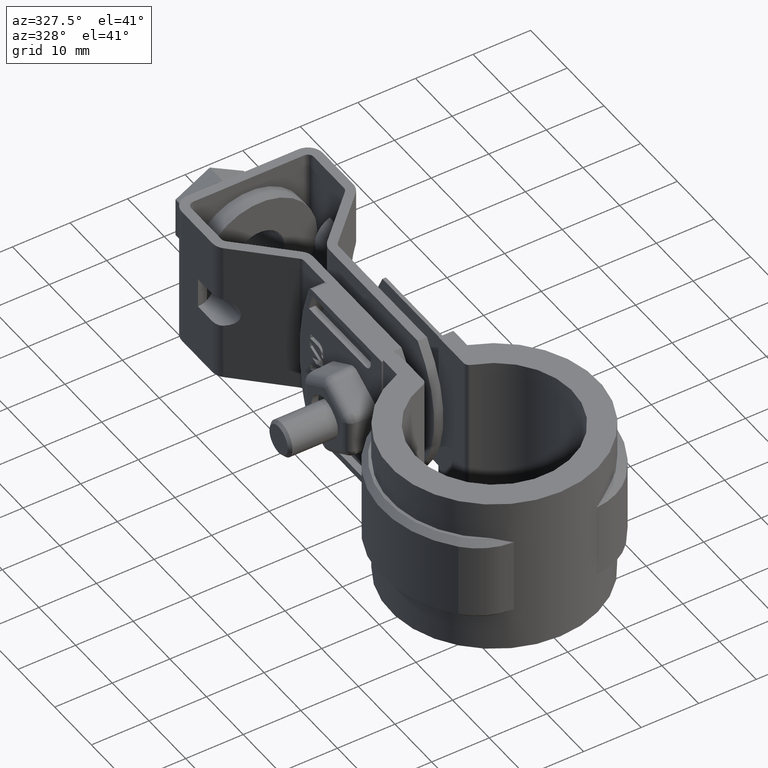
[diagram: clean part render]
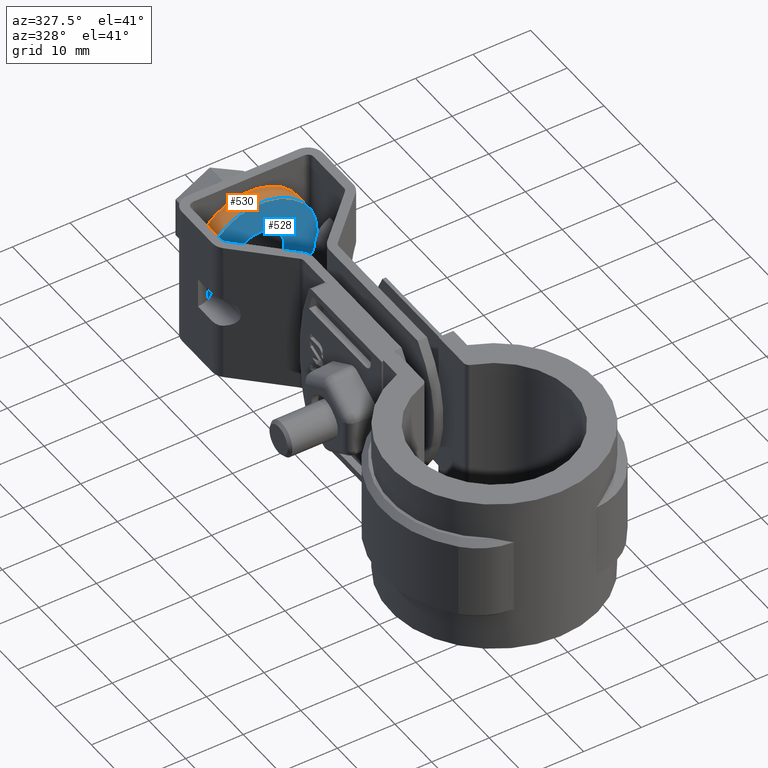
[diagram: same view with the hole feature highlighted: cylindrical wall and planar end face, labeled with their STEP entity ids]
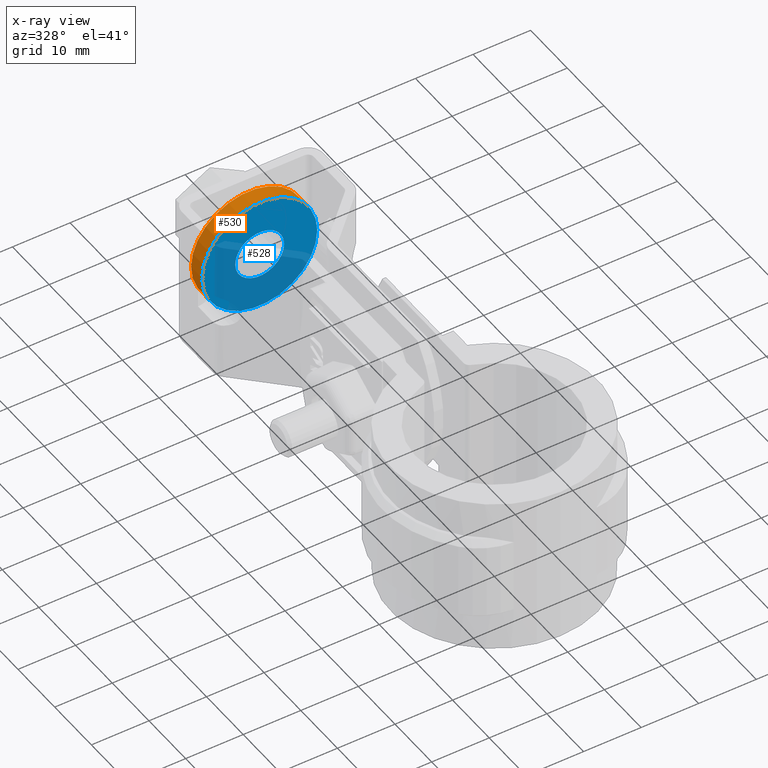
[diagram: x-ray of the same camera — body ghosted, the hole faces saturated]
A machine part, auxiliary view. The highlighted faces form one hole feature of diameter 20 mm: the cylindrical wall (entity #530, orange) and its adjacent planar end face (entity #528, blue) — they share a circular edge in the B-rep.
The next image is the same camera in x-ray (body ghosted, the hole faces saturated) — the bore reads through the body.
Wall:
#530 = ADVANCED_FACE( '', ( #1043, #1044 ), #1045, .T. );
#1043 = FACE_OUTER_BOUND( '', #2124, .T. );
#1044 = FACE_OUTER_BOUND( '', #2125, .T. );
#1045 = CYLINDRICAL_SURFACE( '', #2126, 10.0000000000000 );
#2124 = EDGE_LOOP( '', ( #4671 ) );
#2125 = EDGE_LOOP( '', ( #4672 ) );
#2126 = AXIS2_PLACEMENT_3D( '', #4673, #4674, #4675 );
#4671 = ORIENTED_EDGE( '', *, *, #6461, .T. );
#4672 = ORIENTED_EDGE( '', *, *, #6450, .F. );
#4673 = CARTESIAN_POINT( '', ( 1.11709122459289E-007, 63.9992907745756, -12.4999999821600 ) );
#4674 = DIRECTION( '', ( -7.94778667583653E-010, -1.00000000000000, -1.31468003180933E-010 ) );
#4675 = DIRECTION( '', ( 1.00000000000000, -7.94778667588677E-010, 3.82132749080738E-011 ) );
#6450 = EDGE_CURVE( '', #7681, #7681, #7682, .T. );
#6461 = EDGE_CURVE( '', #7700, #7700, #7701, .T. );
#7681 = VERTEX_POINT( '', #10893 );
#7682 = CIRCLE( '', #10894, 10.0000000000000 );
#7700 = VERTEX_POINT( '', #10921 );
#7701 = CIRCLE( '', #10922, 10.0000000000000 );
#10893 = CARTESIAN_POINT( '', ( 10.0000001140935, 66.9992907666278, -12.4999999813835 ) );
#10894 = AXIS2_PLACEMENT_3D( '', #12627, #12628, #12629 );
#10921 = CARTESIAN_POINT( '', ( 10.0000001117091, 63.9992907666278, -12.4999999817779 ) );
#10922 = AXIS2_PLACEMENT_3D( '', #12642, #12643, #12644 );
#12627 = CARTESIAN_POINT( '', ( 1.14093458462040E-007, 66.9992907745756, -12.4999999817656 ) );
#12628 = DIRECTION( '', ( 7.94778667583653E-010, 1.00000000000000, 1.31468003180933E-010 ) );
#12629 = DIRECTION( '', ( 1.00000000000000, -7.94778667588677E-010, 3.82132749080738E-011 ) );
#12642 = CARTESIAN_POINT( '', ( 1.11709122459289E-007, 63.9992907745756, -12.4999999821600 ) );
#12643 = DIRECTION( '', ( 7.94778667583653E-010, 1.00000000000000, 1.31468003180933E-010 ) );
#12644 = DIRECTION( '', ( 1.00000000000000, -7.94778667588677E-010, 3.82132749080738E-011 ) );
End face:
#528 = ADVANCED_FACE( '', ( #1037, #1038 ), #1039, .F. );
#1037 = FACE_BOUND( '', #2118, .T. );
#1038 = FACE_OUTER_BOUND( '', #2119, .T. );
#1039 = PLANE( '', #2120 );
#2118 = EDGE_LOOP( '', ( #4661 ) );
#2119 = EDGE_LOOP( '', ( #4662 ) );
#2120 = AXIS2_PLACEMENT_3D( '', #4663, #4664, #4665 );
#4661 = ORIENTED_EDGE( '', *, *, #6460, .T. );
#4662 = ORIENTED_EDGE( '', *, *, #6461, .F. );
#4663 = CARTESIAN_POINT( '', ( 1.11709122459289E-007, 63.9992907745756, -12.4999999821600 ) );
#4664 = DIRECTION( '', ( 7.94778667583653E-010, 1.00000000000000, 1.31468003180933E-010 ) );
#4665 = DIRECTION( '', ( 1.00000000000000, -7.94778667588677E-010, 3.82132749080738E-011 ) );
#6460 = EDGE_CURVE( '', #7698, #7698, #7699, .T. );
#6461 = EDGE_CURVE( '', #7700, #7700, #7701, .T. );
#7698 = VERTEX_POINT( '', #10919 );
#7699 = CIRCLE( '', #10920, 4.25000000000000 );
#7700 = VERTEX_POINT( '', #10921 );
#7701 = CIRCLE( '', #10922, 10.0000000000000 );
#10919 = CARTESIAN_POINT( '', ( 4.25000011170912, 63.9992907711978, -12.4999999819976 ) );
#10920 = AXIS2_PLACEMENT_3D( '', #12639, #12640, #12641 );
#10921 = CARTESIAN_POINT( '', ( 10.0000001117091, 63.9992907666278, -12.4999999817779 ) );
#10922 = AXIS2_PLACEMENT_3D( '', #12642, #12643, #12644 );
#12639 = CARTESIAN_POINT( '', ( 1.11709120290884E-007, 63.9992907745756, -12.4999999821600 ) );
#12640 = DIRECTION( '', ( 7.94778667583653E-010, 1.00000000000000, 1.31468003180933E-010 ) );
#12641 = DIRECTION( '', ( 1.00000000000000, -7.94778667588677E-010, 3.82132749080738E-011 ) );
#12642 = CARTESIAN_POINT( '', ( 1.11709122459289E-007, 63.9992907745756, -12.4999999821600 ) );
#12643 = DIRECTION( '', ( 7.94778667583653E-010, 1.00000000000000, 1.31468003180933E-010 ) );
#12644 = DIRECTION( '', ( 1.00000000000000, -7.94778667588677E-010, 3.82132749080738E-011 ) );